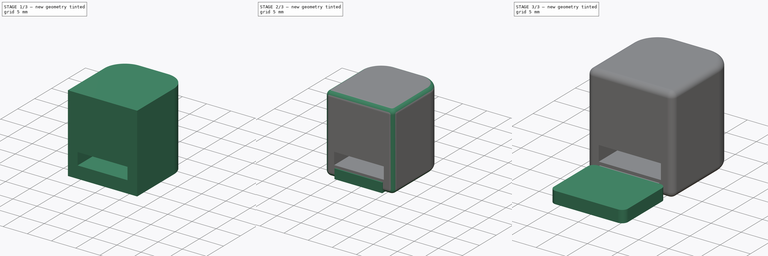
[diagram: build sequence overview — one tinted view per stage of 3, left to right]
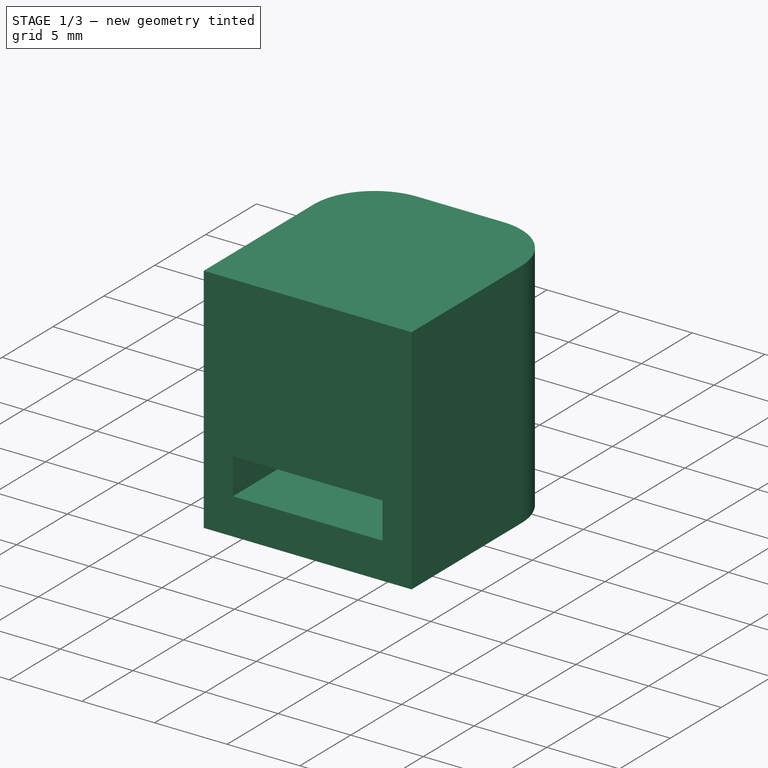
[diagram: stage 1 of 3 — iso view after this stage's code; geometry added in this stage tinted green]
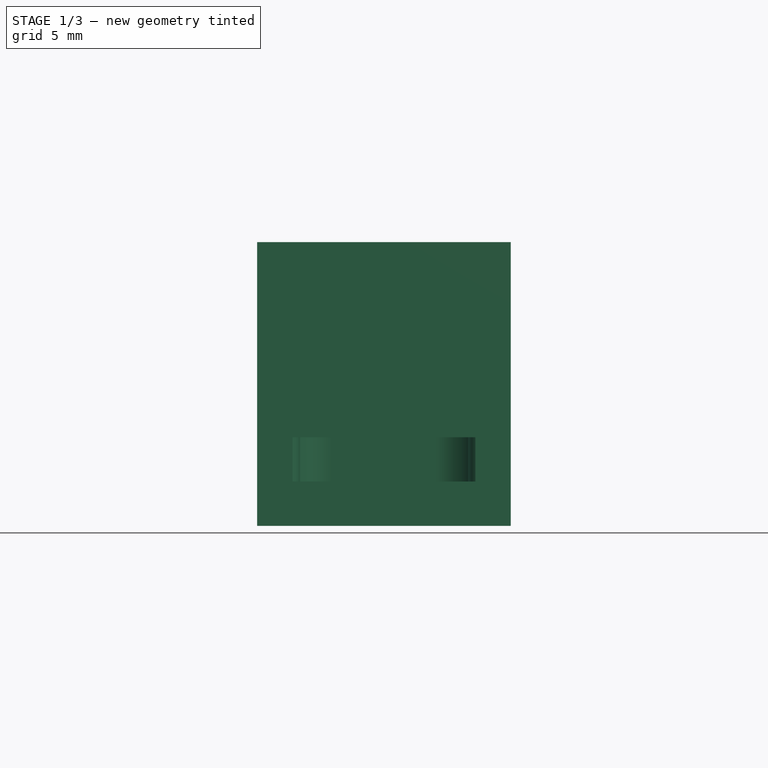
[diagram: stage 1 of 3 — front view after this stage's code; geometry added in this stage tinted green]
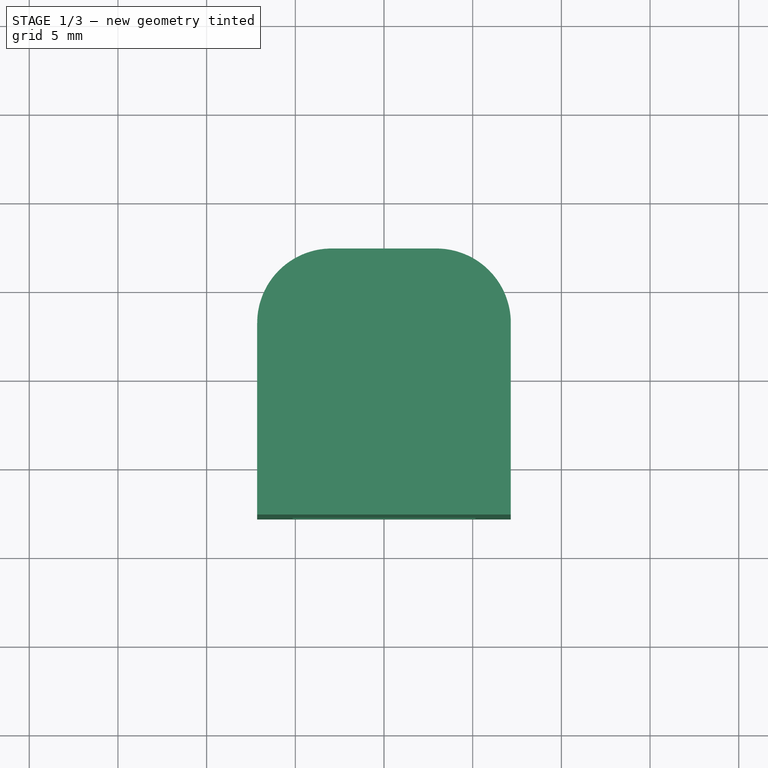
[diagram: stage 1 of 3 — top view after this stage's code; geometry added in this stage tinted green]
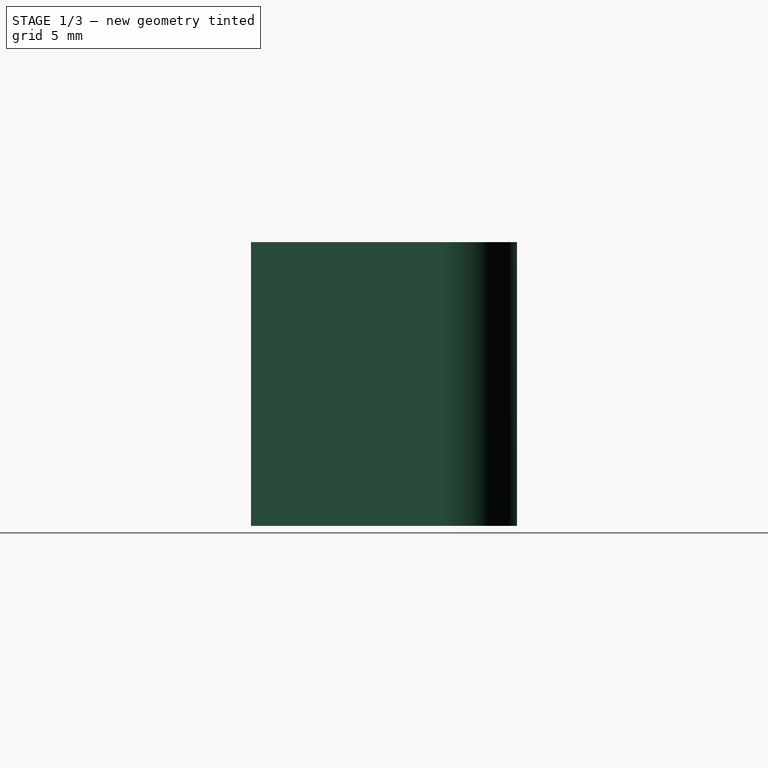
[diagram: stage 1 of 3 — right view after this stage's code; geometry added in this stage tinted green]
FCSTD DOCUMENT  (FreeCAD 1.0R38806 (Git))
Label: IcaBikeLockHandle
License: All rights reserved
LicenseURL: http://en.wikipedia.org/wiki/All_rights_reserved
objects: Sketcher::SketchObject×5, PartDesign::Pad×3, PartDesign::Body×3, PartDesign::ShapeBinder×2, PartDesign::Fillet×2, PartDesign::FeatureBase×1, PartDesign::Pocket×1
note: 35 computed .brp shape members not serialized (recipe doc carries the construction recipe); baked Part::Feature solids carry a one-line shape summary decoded from their .brp

FEATURE [PartDesign::Body] Body001  label="TestCore"
  AllowCompound = false
  Group = -> [Clone,ShapeBinder,Sketch001,Pad001,Fillet]
  Origin = -> Origin001
  Tip = -> Fillet
FEATURE [PartDesign::ShapeBinder] ShapeBinder001
  Support = -> [Sketch]
  TraceSupport = false
FEATURE [Sketcher::SketchObject] Sketch002  label="TH_template"
  ArcFitTolerance = 1e-06
  AttachmentSupport = -> [XY_Plane002]
  ExternalGeometry = -> [ShapeBinder001]
  FullyConstrained = true
  MakeInternals = false
  MapMode = 5
  sketch-geometry (19):
    g0: ArcOfCircle CenterX=-2.95 CenterY=3 CenterZ=0 NormalX=0 NormalY=0 NormalZ=1 AngleXU=0 Radius=2.2 StartAngle=1.5708 EndAngle=3.14159
    g1: LineSegment StartX=-5.15 StartY=3 StartZ=0 EndX=-5.15 EndY=1 EndZ=0
    g2: LineSegment StartX=-2.95 StartY=5.2 StartZ=0 EndX=2.95 EndY=5.2 EndZ=0
    g3: LineSegment [constr] StartX=-5.15 StartY=3 StartZ=0 EndX=-4.95 EndY=3 EndZ=0
    g4: LineSegment [constr] StartX=-2.95 StartY=5.2 StartZ=0 EndX=-2.95 EndY=5 EndZ=0
    g5: ArcOfCircle CenterX=2.95 CenterY=3 CenterZ=0 NormalX=0 NormalY=0 NormalZ=1 AngleXU=0 Radius=2.2 StartAngle=0 EndAngle=1.5708
    g6: LineSegment [constr] StartX=2.95 StartY=5.2 StartZ=0 EndX=2.95 EndY=5 EndZ=0
    g7: LineSegment [constr] StartX=4.95 StartY=3 StartZ=0 EndX=5.15 EndY=3 EndZ=0
    g8: ArcOfCircle CenterX=-5.75 CenterY=0.2 CenterZ=0 NormalX=0 NormalY=0 NormalZ=1 AngleXU=0 Radius=1 StartAngle=5.35589 EndAngle=7.21048
    g9: LineSegment StartX=-5.15 StartY=-0.6 StartZ=0 EndX=-5.15 EndY=-7.80385 EndZ=0
    g10: LineSegment [constr] StartX=-4.75 StartY=0.2 StartZ=0 EndX=-4.55 EndY=0.2 EndZ=0
    g11: LineSegment [constr] StartX=-5.15 StartY=-8.00388 StartZ=0 EndX=-5.15 EndY=-7.80385 EndZ=0
    g12: LineSegment [constr] StartX=-4.95 StartY=-8 StartZ=0 EndX=-5.15 EndY=-8.00388 EndZ=0
    g13: ArcOfCircle CenterX=5.75 CenterY=0.2 CenterZ=0 NormalX=0 NormalY=0 NormalZ=1 AngleXU=0 Radius=1 StartAngle=2.2143 EndAngle=4.06889
    g14: LineSegment StartX=5.15 StartY=3 StartZ=0 EndX=5.15 EndY=1 EndZ=0
    g15: LineSegment StartX=5.15 StartY=-0.6 StartZ=0 EndX=5.15 EndY=-7.80385 EndZ=0
    g16: Circle CenterX=0 CenterY=0 CenterZ=0 NormalX=0 NormalY=0 NormalZ=1 AngleXU=0 Radius=1.79996
    g17: LineSegment [constr] StartX=-1.1016 StartY=-1.66927 StartZ=0 EndX=-0.991423 EndY=-1.50231 EndZ=0
    g18: LineSegment StartX=-5.15 StartY=-7.80385 StartZ=0 EndX=5.15 EndY=-7.80385 EndZ=0
  constraints (53):
    c: Coincident(g0,g-3)
    c: Coincident(g1,g0)
    c: Vertical(g1)
    c: DistanceX(g0,g-3) = 0.2
    c: Coincident(g2,g0)
    c: Horizontal(g2)
    c: Coincident(g3,g0)
    c: Coincident(g3,g-3)
    c: Horizontal(g3)
    c: Coincident(g4,g0)
    c: Coincident(g4,g-3)
    c: Vertical(g4)
    c: Coincident(g5,g-4)
    c: Coincident(g5,g2)
    c: Coincident(g6,g2)
    c: Coincident(g6,g-4)
    c: Coincident(g7,g-4)
    c: Coincident(g7,g5)
    c: Horizontal(g7)
    c: Vertical(g6)
    c: Coincident(g8,g-6)
    c: Coincident(g1,g8)
    c: Coincident(g9,g8)
    c: Vertical(g9)
    c: PointOnObject(g10,g8)
    c: PointOnObject(g10,g-6)
    c: Horizontal(g10)
    c: PointOnObject(g8,g10)
    c: Equal(g10,g3)
    c: PointOnObject(g8,g1)
    c: Vertical(g11)
    c: Equal(g12,g11)
    c: Coincident(g13,g-5)
    c: Equal(g13,g8)
    c: Coincident(g14,g5)
    c: Coincident(g14,g13)
    c: Vertical(g14)
    c: Coincident(g15,g13)
    c: Vertical(g15)
    c: PointOnObject(g13,g14)
    c: PointOnObject(g15,g12)
    c: Coincident(g16,g-1)
    c: PointOnObject(g17,g-8)
    c: PointOnObject(g17,g16)
    c: PointOnObject(g16,g17)
    c: PointOnObject(g9,g17)
    c: Equal(g12,g17)
    c: Coincident(g18,g15)
    c: Coincident(g12,g-7)
    c: Coincident(g11,g12)
    c: Coincident(g11,g9)
    c: Horizontal(g18)
    c: Coincident(g18,g9)
FEATURE [Sketcher::SketchObject] Sketch003
  ArcFitTolerance = 1e-06
  AttachmentSupport = -> [XY_Plane002]
  ExternalGeometry = -> [Sketch002]
  FullyConstrained = true
  MakeInternals = false
  MapMode = 5
  sketch-geometry (7):
    g0: LineSegment StartX=7.15 StartY=-7.80385 StartZ=0 EndX=-7.15 EndY=-7.80385 EndZ=0
    g1: LineSegment StartX=-7.15 StartY=-7.80385 StartZ=0 EndX=-7.15 EndY=3 EndZ=0
    g2: ArcOfCircle CenterX=-2.95 CenterY=3 CenterZ=0 NormalX=0 NormalY=0 NormalZ=1 AngleXU=0 Radius=4.2 StartAngle=1.5708 EndAngle=3.14159
    g3: LineSegment StartX=-2.95 StartY=7.2 StartZ=0 EndX=2.95 EndY=7.2 EndZ=0
    g4: ArcOfCircle CenterX=2.95 CenterY=3 CenterZ=0 NormalX=0 NormalY=0 NormalZ=1 AngleXU=0 Radius=4.2 StartAngle=0 EndAngle=1.5708
    g5: LineSegment StartX=7.15 StartY=3 StartZ=0 EndX=7.15 EndY=-7.80385 EndZ=0
    g6: LineSegment [constr] StartX=5.15 StartY=3 StartZ=0 EndX=7.15 EndY=3 EndZ=0
  constraints (17):
    c: Horizontal(g0)
    c: Coincident(g0,g1)
    c: Vertical(g1)
    c: Tangent(g1,g2) = 1.5708
    c: Tangent(g2,g3) = 1.5708
    c: Tangent(g3,g4) = 1.5708
    c: Coincident(g4,g5)
    c: Coincident(g5,g0)
    c: Vertical(g5)
    c: Horizontal(g3)
    c: Coincident(g2,g-4)
    c: Coincident(g4,g-5)
    c: DistanceX(g0,g-3) = 2
    c: Coincident(g6,g-5)
    c: Coincident(g6,g4)
    c: Horizontal(g6)
    c: PointOnObject(g-3,g0)
FEATURE [PartDesign::Pad] Pad002
  Direction = (0,0,1)
  Length = 16
  Length2 = 10
  Profile = -> Sketch003
  ReferenceAxis = -> Sketch003 [N_Axis]
  Suppressed = false
  Type = 0
FEATURE [Sketcher::SketchObject] Sketch004
  ArcFitTolerance = 1e-06
  AttachmentOffset = pos=(0,0,2.5) rot=(0,0,1;0rad)
  AttachmentSupport = -> [XY_Plane002]
  ExternalGeometry = -> [Sketch002]
  FullyConstrained = true
  MakeInternals = false
  MapMode = 5
  Placement = pos=(0,0,2.5) rot=(0,0,1;0rad)
  sketch-geometry (10):
    g0: ArcOfCircle CenterX=-2.95 CenterY=3 CenterZ=0 NormalX=0 NormalY=0 NormalZ=1 AngleXU=0 Radius=2.2 StartAngle=1.5708 EndAngle=3.14159
    g1: ArcOfCircle CenterX=2.95 CenterY=3 CenterZ=0 NormalX=0 NormalY=0 NormalZ=1 AngleXU=0 Radius=2.2 StartAngle=8e-15 EndAngle=1.5708
    g2: ArcOfCircle CenterX=5.75 CenterY=0.2 CenterZ=0 NormalX=0 NormalY=0 NormalZ=1 AngleXU=0 Radius=1 StartAngle=2.2143 EndAngle=4.06889
    g3: ArcOfCircle CenterX=-5.75 CenterY=0.2 CenterZ=0 NormalX=0 NormalY=0 NormalZ=1 AngleXU=0 Radius=1 StartAngle=5.35589 EndAngle=7.21048
    g4: LineSegment StartX=-2.95 StartY=5.2 StartZ=0 EndX=2.95 EndY=5.2 EndZ=0
    g5: LineSegment StartX=5.15 StartY=3 StartZ=0 EndX=5.15 EndY=1 EndZ=0
    g6: LineSegment StartX=5.15 StartY=-0.6 StartZ=0 EndX=5.15 EndY=-7.80385 EndZ=0
    g7: LineSegment StartX=5.15 StartY=-7.80385 StartZ=0 EndX=-5.15 EndY=-7.80385 EndZ=0
    g8: LineSegment StartX=-5.15 StartY=-7.80385 StartZ=0 EndX=-5.15 EndY=-0.6 EndZ=0
    g9: LineSegment StartX=-5.15 StartY=1 StartZ=0 EndX=-5.15 EndY=3 EndZ=0
  constraints (24):
    c: Coincident(g0,g-3)
    c: Coincident(g0,g-3)
    c: Coincident(g1,g-4)
    c: Coincident(g1,g-4)
    c: Coincident(g2,g-5)
    c: Coincident(g2,g-5)
    c: Coincident(g3,g-6)
    c: Coincident(g3,g-6)
    c: Equal(g0,g-3)
    c: Equal(g-4,g1)
    c: Equal(g-5,g2)
    c: Equal(g-6,g3)
    c: Coincident(g4,g0)
    c: Coincident(g4,g1)
    c: Coincident(g5,g1)
    c: Coincident(g5,g2)
    c: Coincident(g6,g2)
    c: Coincident(g6,g-7)
    c: Coincident(g7,g6)
    c: Coincident(g7,g-7)
    c: Coincident(g8,g7)
    c: Coincident(g8,g3)
    c: Coincident(g9,g3)
    c: Coincident(g9,g0)
FEATURE [PartDesign::Pocket] Pocket
  BaseFeature = -> Pad002
  Direction = (0,0,-1)
  Length = 2.5
  Length2 = 5
  Profile = -> Sketch004
  ReferenceAxis = -> Sketch004 [N_Axis]
  Reversed = true
  Suppressed = false
  Type = 0
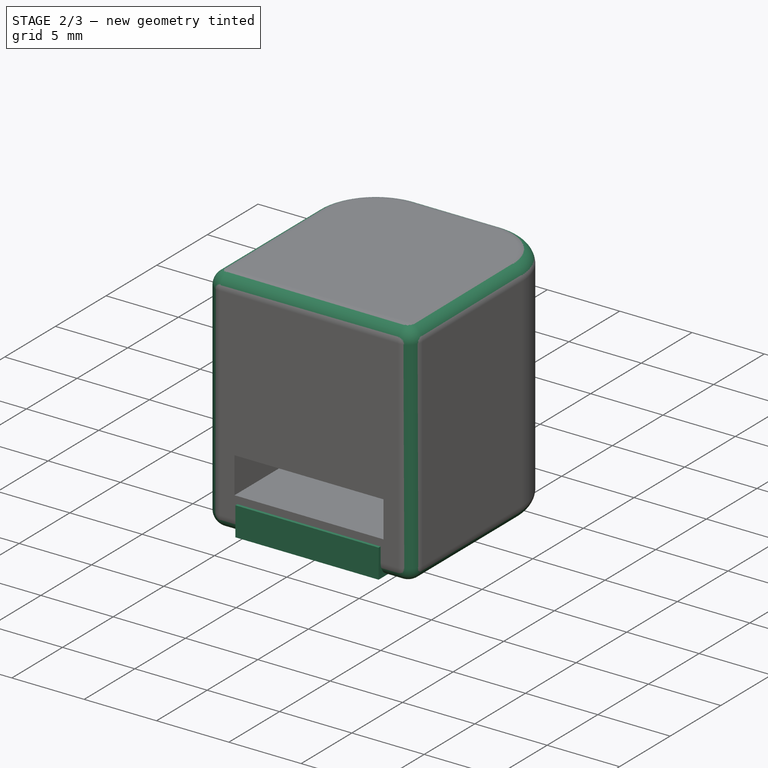
[diagram: stage 2 of 3 — iso view after this stage's code; geometry added in this stage tinted green]
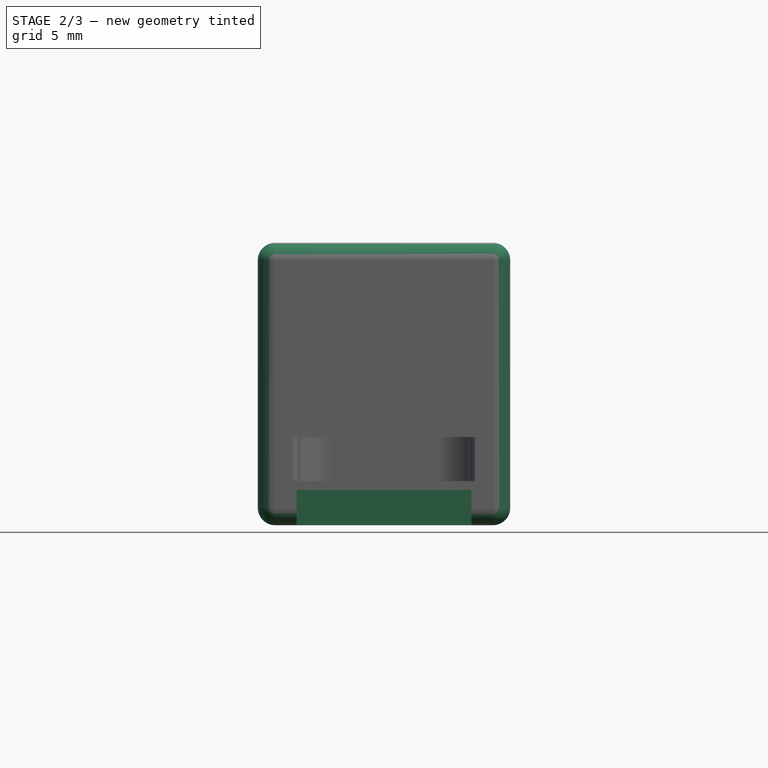
[diagram: stage 2 of 3 — front view after this stage's code; geometry added in this stage tinted green]
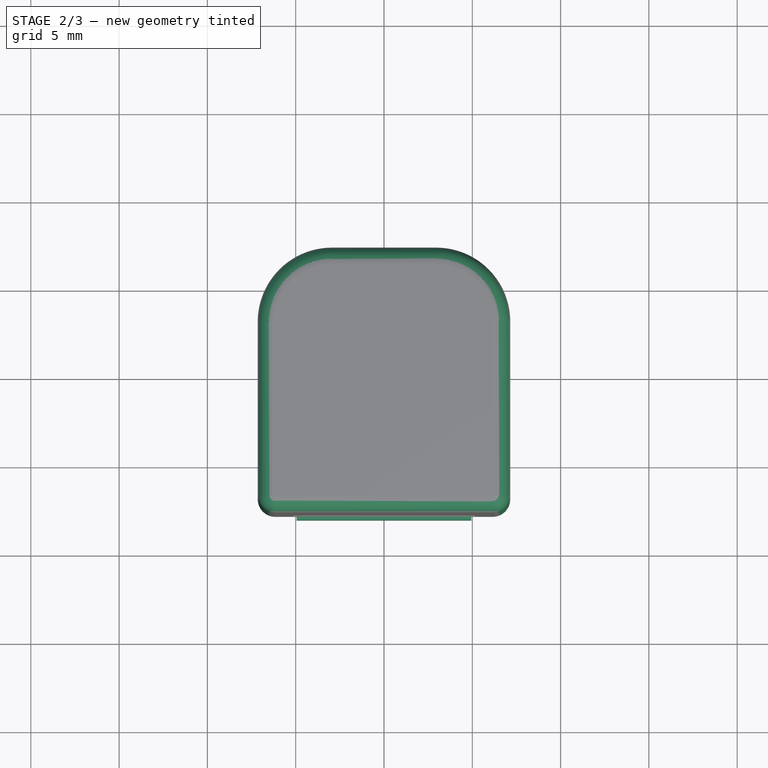
[diagram: stage 2 of 3 — top view after this stage's code; geometry added in this stage tinted green]
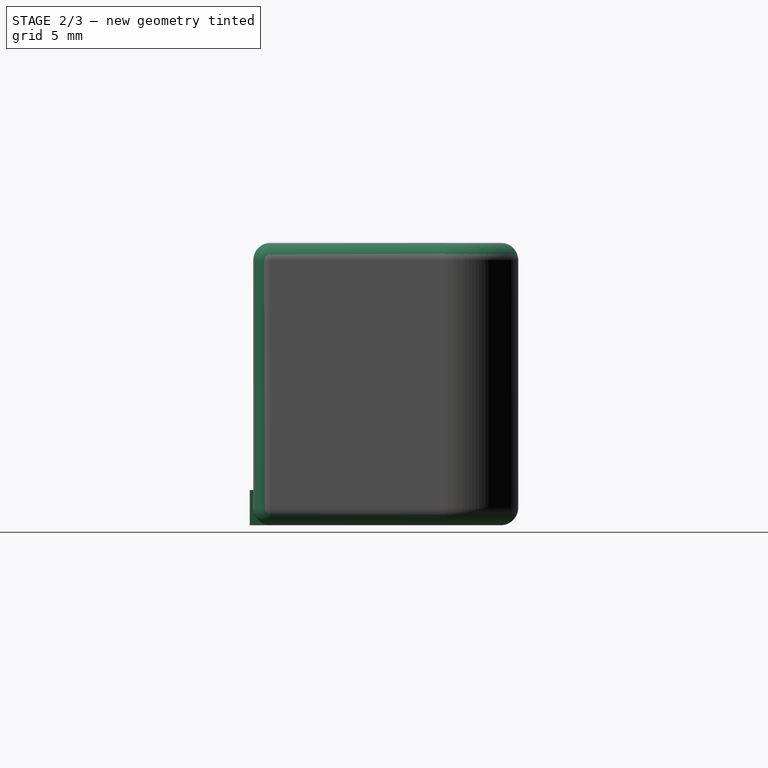
[diagram: stage 2 of 3 — right view after this stage's code; geometry added in this stage tinted green]
FEATURE [Sketcher::SketchObject] Sketch
  ArcFitTolerance = 1e-06
  AttachmentSupport = -> [XY_Plane]
  FullyConstrained = true
  MakeInternals = false
  MapMode = 5
  sketch-geometry (17):
    g0: LineSegment StartX=-4.95 StartY=3 StartZ=0 EndX=-4.95 EndY=1.09443 EndZ=0
    g1: LineSegment StartX=-4.95 StartY=-8 StartZ=0 EndX=4.95 EndY=-8 EndZ=0
    g2: LineSegment StartX=4.95 StartY=-8 StartZ=0 EndX=4.95 EndY=-0.694427 EndZ=0
    g3: LineSegment StartX=2.95 StartY=5 StartZ=0 EndX=-2.95 EndY=5 EndZ=0
    g4: LineSegment [constr] StartX=0 StartY=5 StartZ=0 EndX=0 EndY=-8 EndZ=0
    g5: Circle CenterX=0 CenterY=0 CenterZ=0 NormalX=0 NormalY=0 NormalZ=1 AngleXU=0 Radius=2
    g6: ArcOfCircle CenterX=-5.75 CenterY=0.2 CenterZ=0 NormalX=0 NormalY=0 NormalZ=1 AngleXU=0 Radius=1.2 StartAngle=5.44212 EndAngle=7.12425
    g7: ArcOfCircle CenterX=5.75 CenterY=0.2 CenterZ=0 NormalX=0 NormalY=0 NormalZ=1 AngleXU=0 Radius=1.2 StartAngle=2.30052 EndAngle=3.98266
    g8: LineSegment [constr] StartX=-5.75 StartY=0.2 StartZ=0 EndX=5.75 EndY=0.2 EndZ=0
    g9: LineSegment [constr] StartX=-4.55 StartY=2 StartZ=0 EndX=-4.55 EndY=-8 EndZ=0
    g10: ArcOfCircle CenterX=-2.95 CenterY=3 CenterZ=0 NormalX=0 NormalY=0 NormalZ=1 AngleXU=0 Radius=2 StartAngle=1.5708 EndAngle=3.14159
    g11: ArcOfCircle CenterX=2.95 CenterY=3 CenterZ=0 NormalX=0 NormalY=0 NormalZ=1 AngleXU=0 Radius=2 StartAngle=0 EndAngle=1.5708
    g12: LineSegment [constr] StartX=4.95 StartY=2 StartZ=0 EndX=-4.95 EndY=2 EndZ=0
    g13: LineSegment StartX=-4.95 StartY=-0.694427 StartZ=0 EndX=-4.95 EndY=-8 EndZ=0
    g14: LineSegment StartX=4.95 StartY=1.09443 StartZ=0 EndX=4.95 EndY=3 EndZ=0
    g15: LineSegment [constr] StartX=-4.95 StartY=1.09443 StartZ=0 EndX=-4.95 EndY=-0.694427 EndZ=0
    g16: LineSegment [constr] StartX=4.95 StartY=1.09443 StartZ=0 EndX=4.95 EndY=-0.694427 EndZ=0
  constraints (48):
    c: Coincident(g13,g1)
    c: Coincident(g1,g2)
    c: Vertical(g0)
    c: Vertical(g2)
    c: Horizontal(g1)
    c: Horizontal(g3)
    c: Symmetric(g1,g1,g4)
    c: PointOnObject(g5,g4)
    c: Coincident(g8,g7)
    c: Equal(g6,g7)
    c: Symmetric(g7,g6,g4)
    c: Radius(g6) = 1.2
    c: Diameter(g5) = 4
    c: PointOnObject(g9,g1)
    c: Vertical(g9)
    c: Tangent(g6,g9)
    c: Tangent(g0,g10) = -1.5708
    c: Tangent(g3,g10) = -1.5708
    c: Tangent(g3,g11) = -1.5708
    c: Equal(g10,g11)
    c: Horizontal(g12)
    c: Tangent(g12,g5)
    c: PointOnObject(g12,g0)
    c: PointOnObject(g12,g14)
    c: PointOnObject(g9,g12)
    c: DistanceX(g0,g14) = 9.9
    c: DistanceY(g13,g3) = 13
    c: DistanceY(g12,g3) = 3
    c: Horizontal(g8)
    c: Radius(g11) = 2
    c: PointOnObject(g4,g3)
    c: Coincident(g0,g6)
    c: Coincident(g13,g6)
    c: Coincident(g2,g7)
    c: Coincident(g14,g7)
    c: Coincident(g15,g0)
    c: Coincident(g15,g6)
    c: Vertical(g15)
    c: Coincident(g16,g7)
    c: Coincident(g16,g2)
    c: Vertical(g16)
    c: Vertical(g14)
    c: Vertical(g13)
    c: Tangent(g11,g14) = -1.5708
    c: DistanceX(g0,g9) = 0.4
    c: Coincident(g5,g-1)  '__ANCHOR__'
    c: DistanceY(g6,g3) = 4.8
    c: Coincident(g8,g6)
FEATURE [PartDesign::Pad] Pad
  Direction = (0,0,1)
  Length = 2
  Length2 = 10
  Profile = -> Sketch
  ReferenceAxis = -> Sketch [N_Axis]
  Suppressed = false
  Type = 0
FEATURE [PartDesign::Body] Body
  AllowCompound = false
  Group = -> [Sketch,Pad]
  Origin = -> Origin
  Tip = -> Pad
FEATURE [PartDesign::FeatureBase] Clone
  BaseFeature = -> Pad
  Suppressed = false
FEATURE [PartDesign::Fillet] Fillet001
  Base = -> Pocket [Edge13,Edge17,Edge4,Edge1,Edge3,Edge2]
  BaseFeature = -> Pocket
  Radius = 1
  SupportTransform = false
  Suppressed = false
  UseAllEdges = false
FEATURE [PartDesign::Body] Body002  label="TestHandle"
  AllowCompound = false
  Group = -> [ShapeBinder001,Sketch002,Sketch003,Pad002,Sketch004,Pocket,Fillet001]
  Origin = -> Origin002
  Tip = -> Fillet001
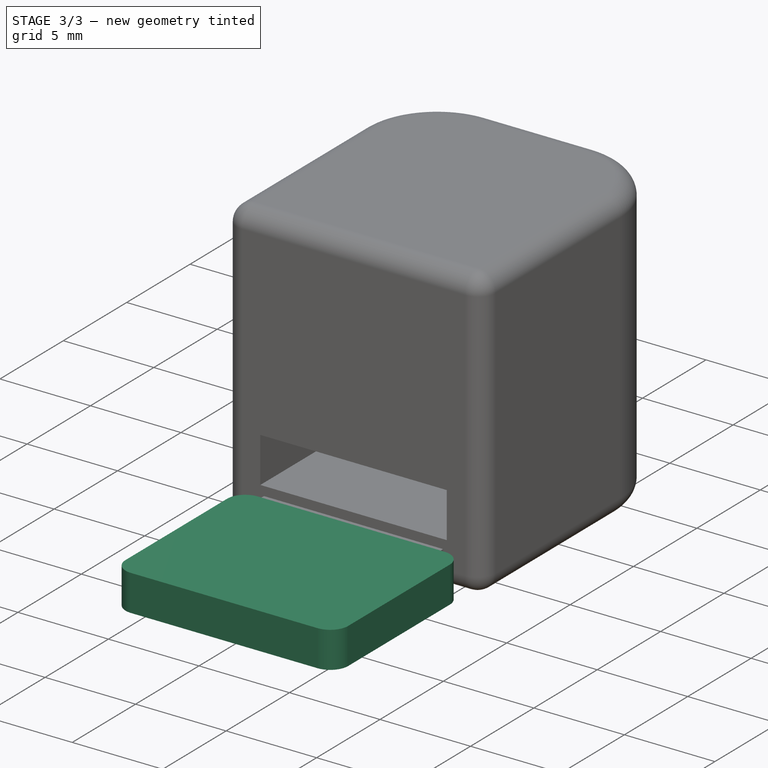
[diagram: stage 3 of 3 — iso view after this stage's code; geometry added in this stage tinted green]
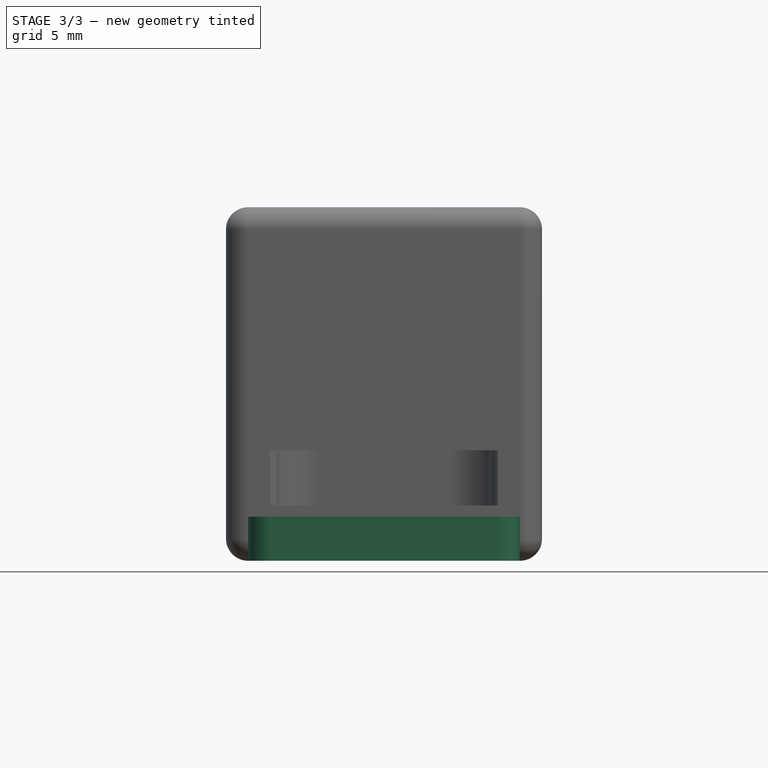
[diagram: stage 3 of 3 — front view after this stage's code; geometry added in this stage tinted green]
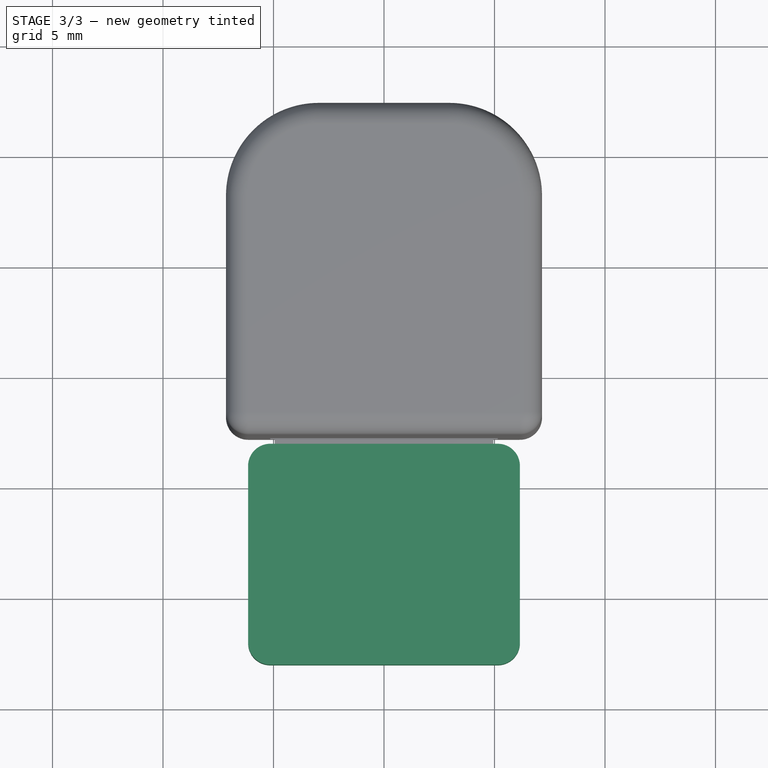
[diagram: stage 3 of 3 — top view after this stage's code; geometry added in this stage tinted green]
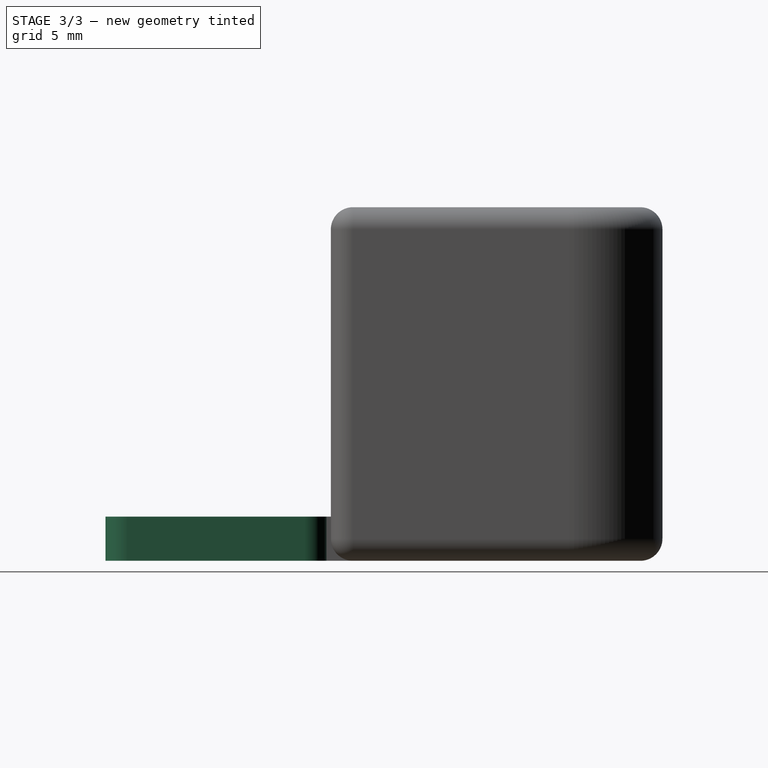
[diagram: stage 3 of 3 — right view after this stage's code; geometry added in this stage tinted green]
FEATURE [PartDesign::ShapeBinder] ShapeBinder
  Support = -> [Sketch]
  TraceSupport = false
FEATURE [Sketcher::SketchObject] Sketch001
  ArcFitTolerance = 1e-06
  AttachmentSupport = -> [XY_Plane001]
  ExternalGeometry = -> [ShapeBinder]
  FullyConstrained = true
  MakeInternals = false
  MapMode = 5
  sketch-geometry (6):
    g0: LineSegment StartX=-4.95 StartY=-8 StartZ=0 EndX=-6.15 EndY=-8 EndZ=0
    g1: LineSegment StartX=-6.15 StartY=-8 StartZ=0 EndX=-6.15 EndY=-18 EndZ=0
    g2: LineSegment StartX=-6.15 StartY=-18 StartZ=0 EndX=6.15 EndY=-18 EndZ=0
    g3: LineSegment StartX=6.15 StartY=-18 StartZ=0 EndX=6.15 EndY=-8 EndZ=0
    g4: LineSegment StartX=6.15 StartY=-8 StartZ=0 EndX=4.95 EndY=-8 EndZ=0
    g5: LineSegment StartX=-4.95 StartY=-8 StartZ=0 EndX=4.95 EndY=-8 EndZ=0
  constraints (16):
    c: Coincident(g-3,g0)
    c: Horizontal(g0)
    c: Coincident(g0,g1)
    c: Vertical(g1)
    c: Coincident(g1,g2)
    c: Horizontal(g2)
    c: Coincident(g2,g3)
    c: Vertical(g3)
    c: Coincident(g3,g4)
    c: Coincident(g4,g-3)
    c: Horizontal(g4)
    c: Equal(g4,g0)
    c: DistanceY(g1,g1) = 10
    c: DistanceX(g0,g0) = 1.2
    c: Coincident(g5,g0)
    c: Coincident(g5,g4)
FEATURE [PartDesign::Pad] Pad001
  BaseFeature = -> Clone
  Direction = (0,0,1)
  Length = 2
  Length2 = 10
  Profile = -> Sketch001
  ReferenceAxis = -> Sketch001 [N_Axis]
  Refine = true
  Suppressed = false
  Type = 0
  expr: Length = Pad.Length
FEATURE [PartDesign::Fillet] Fillet
  Base = -> Pad001 [Edge18,Edge24,Edge30,Edge17]
  BaseFeature = -> Pad001
  Radius = 1
  SupportTransform = false
  Suppressed = false
  UseAllEdges = false
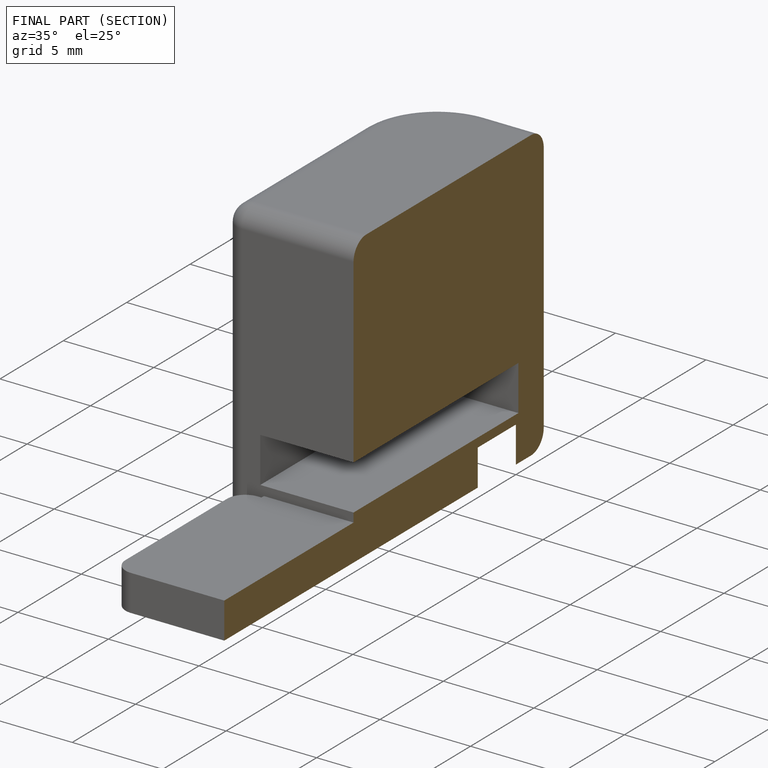
[diagram: finished part — half-section view (interior)]
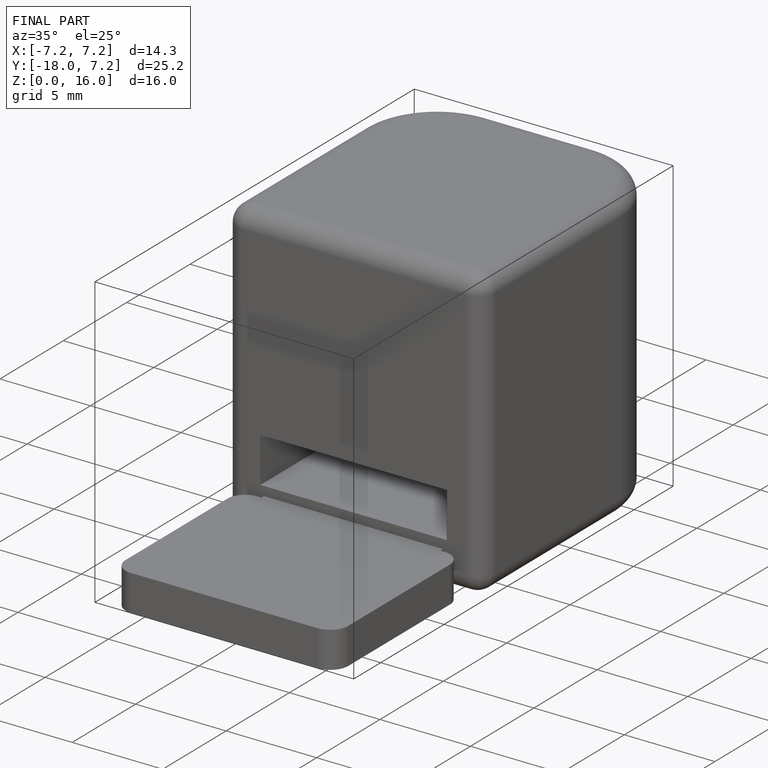
[diagram: finished part — iso view with bounding-box wireframe]
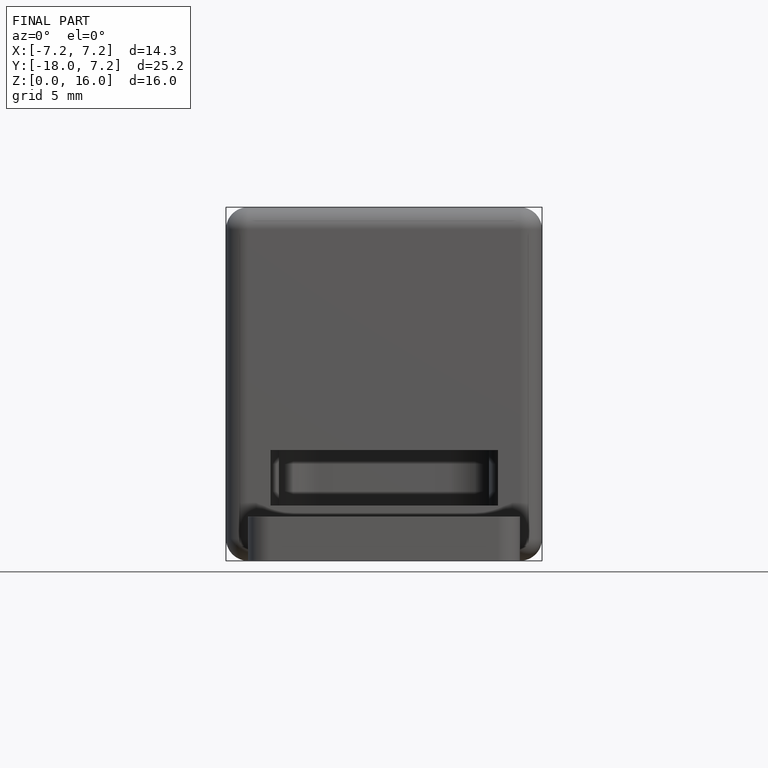
[diagram: finished part — front view with bounding-box wireframe]
